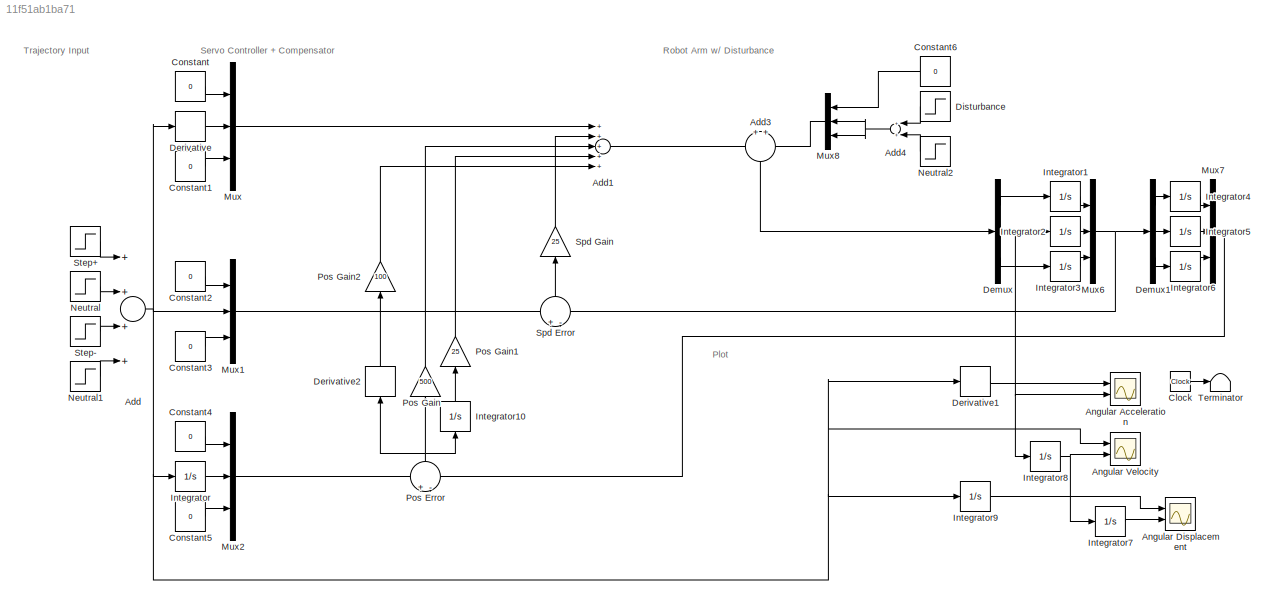
MODEL slx_11f51ab1ba71
KIND model
CONFIG AbsTol = auto
CONFIG EnableMultiTasking = on
CONFIG FixedStep = auto
CONFIG MaxStep = auto
CONFIG MinStep = auto
CONFIG RelTol = 1e-3
CONFIG SampleTimeConstraint = Unconstrained
CONFIG Solver = VariableStepAuto
CONFIG SolverName = VariableStepAuto
CONFIG StartTime = 0.0
CONFIG StopTime = 10.0
BLOCK [Sum] Add
  InputSameDT = off
  Inputs = ++++
  OutDataTypeStr = Inherit: Inherit via internal rule
  Ports = [4, 1]
  SaturateOnIntegerOverflow = off
BLOCK [Sum] Add1
  InputSameDT = off
  Inputs = +++++
  OutDataTypeStr = Inherit: Inherit via internal rule
  Ports = [5, 1]
  SaturateOnIntegerOverflow = off
BLOCK [Sum] Add3
  IconShape = round
  InputSameDT = off
  OutDataTypeStr = Inherit: Inherit via internal rule
  Ports = [2, 1]
  SaturateOnIntegerOverflow = off
BLOCK [Sum] Add4
  InputSameDT = off
  OutDataTypeStr = Inherit: Inherit via internal rule
  Ports = [2, 1]
  SaturateOnIntegerOverflow = off
BLOCK [Scope] Angular Acceleration
  NumInputPorts = 2
  Ports = [2]
  ScopeSpecificationString = Simulink.scopes.TimeScopeBlockCfg('CurrentConfiguration', extmgr.ConfigurationSet(extmgr.Configuration('Core','General UI',true),extmgr.Configuration('Core','Source UI',true),extmgr.Configuration('Sources','WiredSimulink',true),extmgr.Configuration('Visuals','Time Domain',true,'SerializedDisplays',{struct('MinYLimReal','-10','MaxYLimReal','10','YLabelReal','','MinYLimMag','0','MaxYLimMag','10','Le...<+742ch>
BLOCK [Scope] Angular Displacement
  NumInputPorts = 2
  Ports = [2]
  ScopeSpecificationString = Simulink.scopes.TimeScopeBlockCfg('CurrentConfiguration', extmgr.ConfigurationSet(extmgr.Configuration('Core','General UI',true),extmgr.Configuration('Core','Source UI',true),extmgr.Configuration('Sources','WiredSimulink',true,'DataLoggingVariableName','ScopeData2'),extmgr.Configuration('Visuals','Time Domain',true,'SerializedDisplays',{struct('MinYLimReal','2.9536','MaxYLimReal','3.04904','YLabel...<+1397ch>
BLOCK [Scope] Angular Velocity
  NumInputPorts = 2
  Ports = [2]
  ScopeSpecificationString = Simulink.scopes.TimeScopeBlockCfg('CurrentConfiguration', extmgr.ConfigurationSet(extmgr.Configuration('Core','General UI',true),extmgr.Configuration('Core','Source UI',true),extmgr.Configuration('Sources','WiredSimulink',true,'DataLoggingVariableName','ScopeData1'),extmgr.Configuration('Visuals','Time Domain',true,'SerializedDisplays',{struct('MinYLimReal','-1.91961','MaxYLimReal','1.92252','YLab...<+1376ch>
BLOCK [Clock] Clock
BLOCK [Constant] Constant
  Value = 0
BLOCK [Constant] Constant1
  Value = 0
BLOCK [Constant] Constant2
  Value = 0
BLOCK [Constant] Constant3
  Value = 0
BLOCK [Constant] Constant4
  Value = 0
BLOCK [Constant] Constant5
  Value = 0
BLOCK [Constant] Constant6
  Value = 0
BLOCK [Demux] Demux
  DisplayOption = bar
  Outputs = 3
  Ports = [1, 3]
BLOCK [Demux] Demux1
  DisplayOption = bar
  Outputs = 3
  Ports = [1, 3]
BLOCK [Derivative] Derivative
BLOCK [Derivative] Derivative1
BLOCK [Derivative] Derivative2
BLOCK [Step] Disturbance
  SampleTime = 0
  Time = 3
BLOCK [Integrator] Integrator
  Ports = [1, 1]
BLOCK [Integrator] Integrator1
  Ports = [1, 1]
BLOCK [Integrator] Integrator10
  Ports = [1, 1]
BLOCK [Integrator] Integrator2
  Ports = [1, 1]
BLOCK [Integrator] Integrator3
  Ports = [1, 1]
BLOCK [Integrator] Integrator4
  Ports = [1, 1]
BLOCK [Integrator] Integrator5
  Ports = [1, 1]
BLOCK [Integrator] Integrator6
  Ports = [1, 1]
BLOCK [Integrator] Integrator7
  Ports = [1, 1]
BLOCK [Integrator] Integrator8
  Ports = [1, 1]
BLOCK [Integrator] Integrator9
  Ports = [1, 1]
BLOCK [Mux] Mux
  DisplayOption = bar
  Inputs = 3
  Ports = [3, 1]
BLOCK [Mux] Mux1
  DisplayOption = bar
  Inputs = 3
  Ports = [3, 1]
BLOCK [Mux] Mux2
  DisplayOption = bar
  Inputs = 3
  Ports = [3, 1]
BLOCK [Mux] Mux6
  DisplayOption = bar
  Inputs = 3
  Ports = [3, 1]
BLOCK [Mux] Mux7
  DisplayOption = bar
  Inputs = 3
  Ports = [3, 1]
BLOCK [Mux] Mux8
  DisplayOption = bar
  Inputs = 3
  Ports = [3, 1]
BLOCK [Step] Neutral
  After = -1.5
  SampleTime = 0
  Time = 2
BLOCK [Step] Neutral1
  After = 1.5
  SampleTime = 0
  Time = 7
BLOCK [Step] Neutral2
  After = -1
  SampleTime = 0
  Time = 8
BLOCK [Sum] Pos Error
  IconShape = round
  InputSameDT = off
  Inputs = +-
  OutDataTypeStr = Inherit: Inherit via internal rule
  Ports = [2, 1]
  SaturateOnIntegerOverflow = off
BLOCK [Gain] Pos Gain
  Gain = 500
  OutDataTypeStr = Inherit: Inherit via internal rule
  ParamDataTypeStr = Inherit: Inherit via internal rule
  SaturateOnIntegerOverflow = off
BLOCK [Gain] Pos Gain1
  Gain = 25
  OutDataTypeStr = Inherit: Inherit via internal rule
  ParamDataTypeStr = Inherit: Inherit via internal rule
  SaturateOnIntegerOverflow = off
BLOCK [Gain] Pos Gain2
  Gain = 100
  OutDataTypeStr = Inherit: Inherit via internal rule
  ParamDataTypeStr = Inherit: Inherit via internal rule
  SaturateOnIntegerOverflow = off
BLOCK [Sum] Spd Error
  IconShape = round
  InputSameDT = off
  Inputs = +-
  OutDataTypeStr = Inherit: Inherit via internal rule
  Ports = [2, 1]
  SaturateOnIntegerOverflow = off
BLOCK [Gain] Spd Gain
  Gain = 25
  OutDataTypeStr = Inherit: Inherit via internal rule
  ParamDataTypeStr = Inherit: Inherit via internal rule
  SaturateOnIntegerOverflow = off
BLOCK [Step] Step+
  After = 1.5
  SampleTime = 0
  Time = 0
BLOCK [Step] Step-
  After = -1.5
  SampleTime = 0
  Time = 5
BLOCK [Terminator] Terminator
ANNOTATION (root): Plot
ANNOTATION (root): Robot Arm w/ Disturbance
ANNOTATION (root): Servo Controller + Compensator
ANNOTATION (root): Trajectory Input
LINE Add1:1 -> Add3:1
LINE Add3:1 -> Demux:1
NET Add4:1 -> Mux8:2, Mux8:3
NET Add:1 -> Angular Velocity:1, Derivative1:1, Derivative:1, Integrator9:1, Integrator:1, Mux1:2
LINE Clock:1 -> Terminator:1
LINE Constant1:1 -> Mux:3
LINE Constant2:1 -> Mux1:1
LINE Constant3:1 -> Mux1:3
LINE Constant4:1 -> Mux2:1
LINE Constant5:1 -> Mux2:3
LINE Constant6:1 -> Mux8:1
LINE Constant:1 -> Mux:1
LINE Demux1:1 -> Integrator4:1
LINE Demux1:2 -> Integrator5:1
LINE Demux1:3 -> Integrator6:1
LINE Demux:1 -> Integrator1:1
NET Demux:2 -> Angular Acceleration:2, Integrator2:1, Integrator8:1
LINE Demux:3 -> Integrator3:1
LINE Derivative1:1 -> Angular Acceleration:1
LINE Derivative2:1 -> Pos Gain2:1
LINE Derivative:1 -> Mux:2
LINE Disturbance:1 -> Add4:1
LINE Integrator10:1 -> Pos Gain1:1
LINE Integrator1:1 -> Mux6:1
LINE Integrator2:1 -> Mux6:2
LINE Integrator3:1 -> Mux6:3
LINE Integrator4:1 -> Mux7:1
LINE Integrator5:1 -> Mux7:2
LINE Integrator6:1 -> Mux7:3
LINE Integrator7:1 -> Angular Displacement:2
NET Integrator8:1 -> Angular Velocity:2, Integrator7:1
LINE Integrator9:1 -> Angular Displacement:1
LINE Integrator:1 -> Mux2:2
LINE Mux1:1 -> Spd Error:1
LINE Mux2:1 -> Pos Error:1
NET Mux6:1 -> Demux1:1, Spd Error:2
LINE Mux7:1 -> Pos Error:2
LINE Mux8:1 -> Add3:2
LINE Mux:1 -> Add1:1
LINE Neutral1:1 -> Add:4
LINE Neutral2:1 -> Add4:2
LINE Neutral:1 -> Add:2
NET Pos Error:1 -> Derivative2:1, Integrator10:1, Pos Gain:1
LINE Pos Gain1:1 -> Add1:4
LINE Pos Gain2:1 -> Add1:5
LINE Pos Gain:1 -> Add1:3
LINE Spd Error:1 -> Spd Gain:1
LINE Spd Gain:1 -> Add1:2
LINE Step+:1 -> Add:1
LINE Step-:1 -> Add:3
note: NET lines group one-source signal fan-out (src -> all destinations, sorted); 1:1 wires keep LINE
